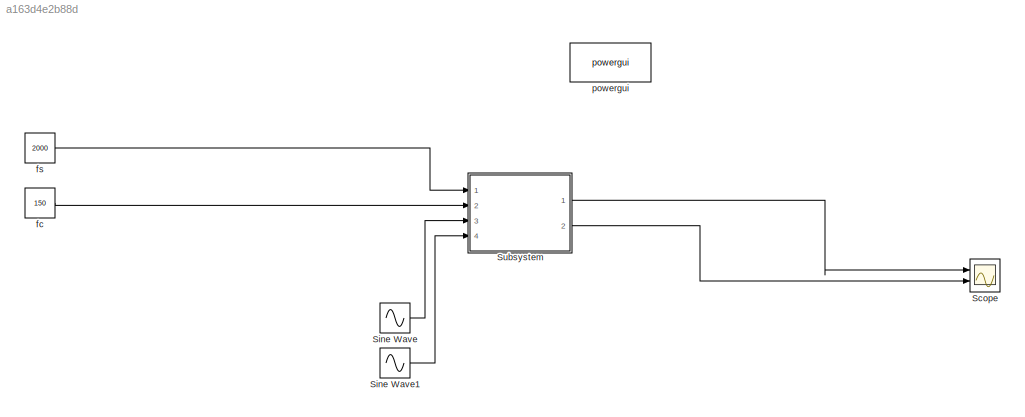
MODEL slx_a163d4e2b88d
KIND model
CONFIG AbsTol = auto
CONFIG EnableMultiTasking = off
CONFIG FixedStep = auto
CONFIG MaxStep = auto
CONFIG MinStep = auto
CONFIG RelTol = 1e-3
CONFIG SampleTimeConstraint = Unconstrained
CONFIG SolverName = VariableStepAuto
CONFIG StartTime = 0.0
CONFIG StopTime = 1
BLOCK [Scope] Scope
  Floating = off
  NumInputPorts = 2
  Ports = [2]
  ScopeSpecificationString = Simulink.scopes.TimeScopeBlockCfg('CurrentConfiguration', extmgr.ConfigurationSet(extmgr.Configuration('Core','General UI',true),extmgr.Configuration('Core','Source UI',true),extmgr.Configuration('Sources','WiredSimulink',true),extmgr.Configuration('Visuals','Time Domain',true,'SerializedDisplays',{struct('MinYLimReal','-0.59918','MaxYLimReal','7.04273','YLabelReal','','MinYLimMag','0.00000','MaxY...<+1518ch>
BLOCK [Sin] Sine Wave
  Amplitude = 2
  Bias = 2
  Frequency = 400
  Phase = 0.5*pi
  Ports = [0, 1]
  SampleTime = 0
BLOCK [Sin] Sine Wave1
  Amplitude = 2
  Bias = 6
  Frequency = 400
  Phase = 0.5*pi
  Ports = [0, 1]
  SampleTime = 0
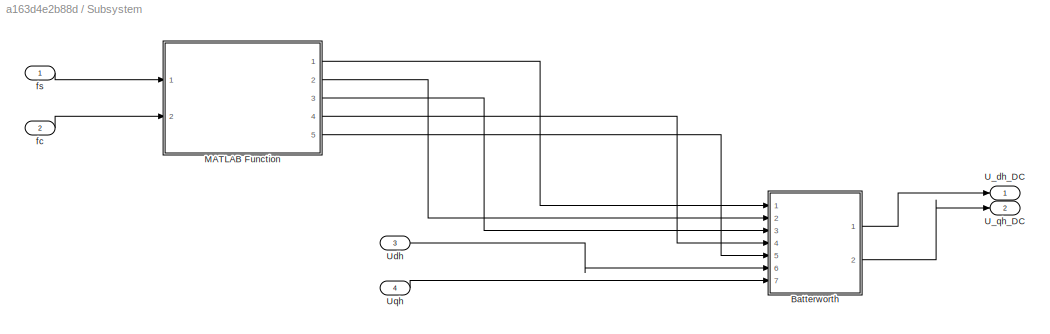
BLOCK [SubSystem] Subsystem
  Ports = [4, 2]
  RequestExecContextInheritance = off
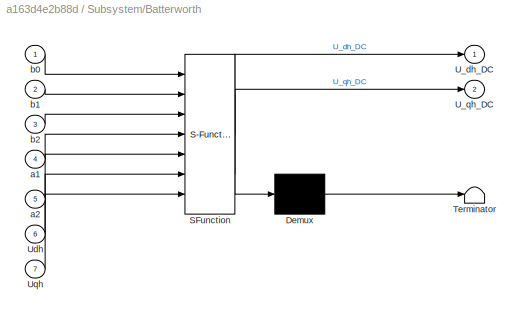
BLOCK [SubSystem] Subsystem/Batterworth
  ErrorFcn = Stateflow.Translate.translate
  PermitHierarchicalResolution = ExplicitOnly
  Ports = [7, 2]
  RequestExecContextInheritance = off
  SFBlockType = MATLAB Function
  TreatAsAtomicUnit = on
BLOCK [Demux] Subsystem/Batterworth/ Demux 
  Outputs = 1
  Ports = [1, 1]
BLOCK [S-Function] Subsystem/Batterworth/ SFunction 
  EnableBusSupport = on
  FunctionName = sf_sfun
  PortCounts = [7 3]
  Ports = [7, 3]
  SFcnIsStateOwnerBlock = off
  SFunctionDeploymentMode = off
  Tag = Stateflow S-Function 2
BLOCK [Terminator] Subsystem/Batterworth/ Terminator 
BLOCK [Outport] Subsystem/Batterworth/U_dh_DC
BLOCK [Outport] Subsystem/Batterworth/U_qh_DC
  Port = 2
BLOCK [Inport] Subsystem/Batterworth/Udh
  Port = 6
BLOCK [Inport] Subsystem/Batterworth/Uqh
  Port = 7
BLOCK [Inport] Subsystem/Batterworth/a1
  Port = 4
BLOCK [Inport] Subsystem/Batterworth/a2
  Port = 5
BLOCK [Inport] Subsystem/Batterworth/b0
BLOCK [Inport] Subsystem/Batterworth/b1
  Port = 2
BLOCK [Inport] Subsystem/Batterworth/b2
  Port = 3
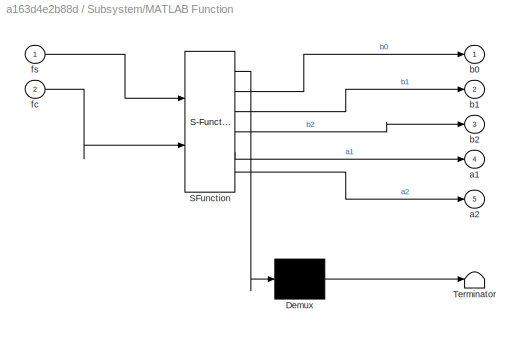
BLOCK [SubSystem] Subsystem/MATLAB Function
  ErrorFcn = Stateflow.Translate.translate
  PermitHierarchicalResolution = ExplicitOnly
  Ports = [2, 5]
  RequestExecContextInheritance = off
  SFBlockType = MATLAB Function
  TreatAsAtomicUnit = on
BLOCK [Demux] Subsystem/MATLAB Function/ Demux 
  Outputs = 1
  Ports = [1, 1]
BLOCK [S-Function] Subsystem/MATLAB Function/ SFunction 
  EnableBusSupport = on
  FunctionName = sf_sfun
  PortCounts = [2 6]
  Ports = [2, 6]
  SFcnIsStateOwnerBlock = off
  SFunctionDeploymentMode = off
  Tag = Stateflow S-Function 1
BLOCK [Terminator] Subsystem/MATLAB Function/ Terminator 
BLOCK [Outport] Subsystem/MATLAB Function/a1
  Port = 4
BLOCK [Outport] Subsystem/MATLAB Function/a2
  Port = 5
BLOCK [Outport] Subsystem/MATLAB Function/b0
BLOCK [Outport] Subsystem/MATLAB Function/b1
  Port = 2
BLOCK [Outport] Subsystem/MATLAB Function/b2
  Port = 3
BLOCK [Inport] Subsystem/MATLAB Function/fc
  Port = 2
BLOCK [Inport] Subsystem/MATLAB Function/fs
BLOCK [Outport] Subsystem/U_dh_DC
BLOCK [Outport] Subsystem/U_qh_DC
  Port = 2
BLOCK [Inport] Subsystem/Udh
  Port = 3
BLOCK [Inport] Subsystem/Uqh
  Port = 4
BLOCK [Inport] Subsystem/fc
  Port = 2
BLOCK [Inport] Subsystem/fs
BLOCK [Constant] fc
  Value = 150
BLOCK [Constant] fs
  Value = 2000
BLOCK [Reference] powergui  REF=spspowerguiLib/powergui
  Ports = []
  Priority = 1
  SourceBlock = spspowerguiLib/powergui
  SourceProductBaseCode = PS
  SourceType = PSB option menu block
LINE Sine Wave1:1 -> Subsystem:4
LINE Sine Wave:1 -> Subsystem:3
LINE Subsystem/Batterworth:1 -> Subsystem/U_dh_DC:1
LINE Subsystem/Batterworth:2 -> Subsystem/U_qh_DC:1
LINE Subsystem/MATLAB Function:1 -> Subsystem/Batterworth:1
LINE Subsystem/MATLAB Function:2 -> Subsystem/Batterworth:2
LINE Subsystem/MATLAB Function:3 -> Subsystem/Batterworth:3
LINE Subsystem/MATLAB Function:4 -> Subsystem/Batterworth:4
LINE Subsystem/MATLAB Function:5 -> Subsystem/Batterworth:5
LINE Subsystem/Udh:1 -> Subsystem/Batterworth:6
LINE Subsystem/Uqh:1 -> Subsystem/Batterworth:7
LINE Subsystem/fc:1 -> Subsystem/MATLAB Function:2
LINE Subsystem/fs:1 -> Subsystem/MATLAB Function:1
LINE Subsystem:1 -> Scope:1
LINE Subsystem:2 -> Scope:2
LINE fc:1 -> Subsystem:2
LINE fs:1 -> Subsystem:1
CHART Subsystem/MATLAB Function states=1 transitions=1
  STATE_LABEL 'eML_blk_kernel()'
  STATE_LABEL "SCRIPT:\nfunction [b0, b1, b2, a1, a2] = butterworth_2nd(fs, fc)\n\npersistent first_flag\npersistent b_0\npersistent b_1\npersistent b_2\npersistent a_1\npersistent a_2\n\nif isempty(first_flag)\n\n    Wn = fc / (fs/2);\n\n    [b, a] = butter(2, Wn, 'low');\n\n    b_0 = b(1);\n    b_1 = b(2);\n    b_2 = b(3);\n\n    a_1 = a(2);\n    a_2 = a(3);\n\n    first_flag=true;\nend\n\nb0 = b_0;\nb1 = b_1;\nb2 = b_2;\n\na1 = a_1;\na2 = ...<+13ch>"
CHART Subsystem/Batterworth states=1 transitions=1
  STATE_LABEL 'eML_blk_kernel()'
  STATE_LABEL 'SCRIPT:\nfunction [U_dh_DC,U_qh_DC]= fcn(b0,b1,b2,a1,a2,Udh,Uqh)\n\npersistent first_flag\npersistent x_0\npersistent x_1\npersistent x_2\npersistent x_3\npersistent x_4\npersistent x_5\npersistent y_1\npersistent y_2\npersistent y_3\npersistent y_4\npersistent y_0_d\npersistent y_0_q\nif isempty(first_flag)\n    U_dh_DC=0;\n    U_qh_DC=0;\n    x_0=0;\n    x_1=0;\n    x_2=0;\n    y_1=0;\n    y_2=0;\n    x_3=0;\n    x_4=0;...<+355ch>'
CHART  states=0 transitions=0
CHART  states=0 transitions=0
